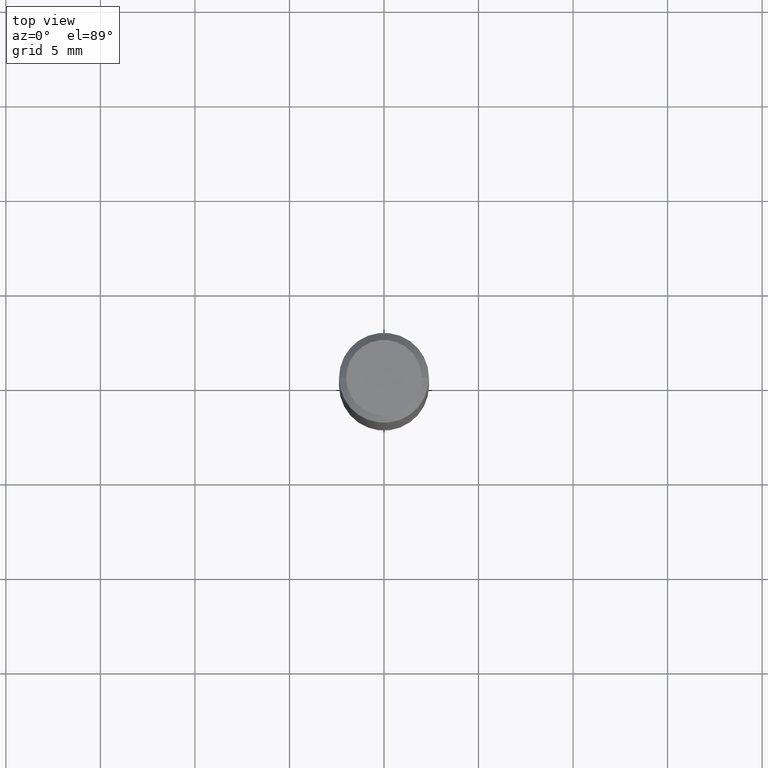
[diagram: clean part render]
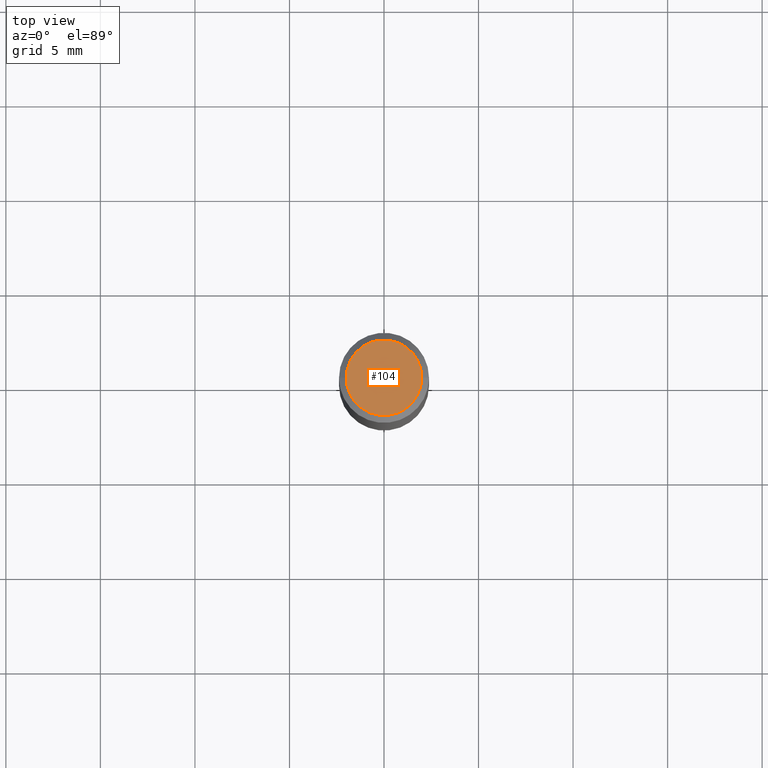
[diagram: same view with one face highlighted and labeled with its STEP entity id]
A machine part, top view. The second image highlights one B-rep face of the part: STEP entity #104.
In plain terms, the highlighted planar face has unit normal (0, -0, -1).
Its self-contained STEP definition (entity closure, byte-faithful):
#2 = DIRECTION ( 'NONE',  ( 2.438088387897960049E-29, -3.491481338843145188E-15, -1.000000000000000000 ) ) ;
#35 = PLANE ( 'NONE',  #77 ) ;
#41 = CIRCLE ( 'NONE', #234, 0.07875000000000001443 ) ;
#77 = AXIS2_PLACEMENT_3D ( 'NONE', #329, #2, #141 ) ;
#78 = CIRCLE ( 'NONE', #210, 0.07875000000000001443 ) ;
#104 = ADVANCED_FACE ( 'NONE', ( #357 ), #35, .F. ) ;
#109 = DIRECTION ( 'NONE',  ( 1.000000000000000000, -6.982962677686267499E-15, 4.876807983162778740E-29 ) ) ;
#117 = VERTEX_POINT ( 'NONE', #288 ) ;
#125 = DIRECTION ( 'NONE',  ( -2.445468806185136597E-29, 3.491481338843145583E-15, 1.000000000000000000 ) ) ;
#141 = DIRECTION ( 'NONE',  ( -1.000000000000000000, 6.982962677686265922E-15, -4.876176775795935793E-29 ) ) ;
#152 = CARTESIAN_POINT ( 'NONE',  ( -4.217098251943042903E-46, 6.020898656931179793E-32, 1.724453912999037237E-17 ) ) ;
#153 = VERTEX_POINT ( 'NONE', #192 ) ;
#192 = CARTESIAN_POINT ( 'NONE',  ( -0.07875000000000001443, 5.760944209091169839E-16, 1.724453912998643423E-17 ) ) ;
#210 = AXIS2_PLACEMENT_3D ( 'NONE', #275, #125, #239 ) ;
#222 = EDGE_CURVE ( 'NONE', #153, #117, #41, .T. ) ;
#234 = AXIS2_PLACEMENT_3D ( 'NONE', #152, #294, #109 ) ;
#239 = DIRECTION ( 'NONE',  ( 1.000000000000000000, -6.982962677686267499E-15, 4.876807983162778740E-29 ) ) ;
#275 = CARTESIAN_POINT ( 'NONE',  ( -4.217098251943042903E-46, 6.020898656931179793E-32, 1.724453912999037237E-17 ) ) ;
#288 = CARTESIAN_POINT ( 'NONE',  ( 0.07875000000000001443, -6.179040623491182236E-16, 1.724453912999445534E-17 ) ) ;
#294 = DIRECTION ( 'NONE',  ( -2.445468806185136597E-29, 3.491481338843145583E-15, 1.000000000000000000 ) ) ;
#329 = CARTESIAN_POINT ( 'NONE',  ( 5.499083108677934443E-16, 0.07875000000000001443, -2.663318858689025652E-16 ) ) ;
#343 = ORIENTED_EDGE ( 'NONE', *, *, #222, .T. ) ;
#357 = FACE_OUTER_BOUND ( 'NONE', #407, .T. ) ;
#376 = ORIENTED_EDGE ( 'NONE', *, *, #446, .T. ) ;
#407 = EDGE_LOOP ( 'NONE', ( #343, #376 ) ) ;
#446 = EDGE_CURVE ( 'NONE', #117, #153, #78, .T. ) ;